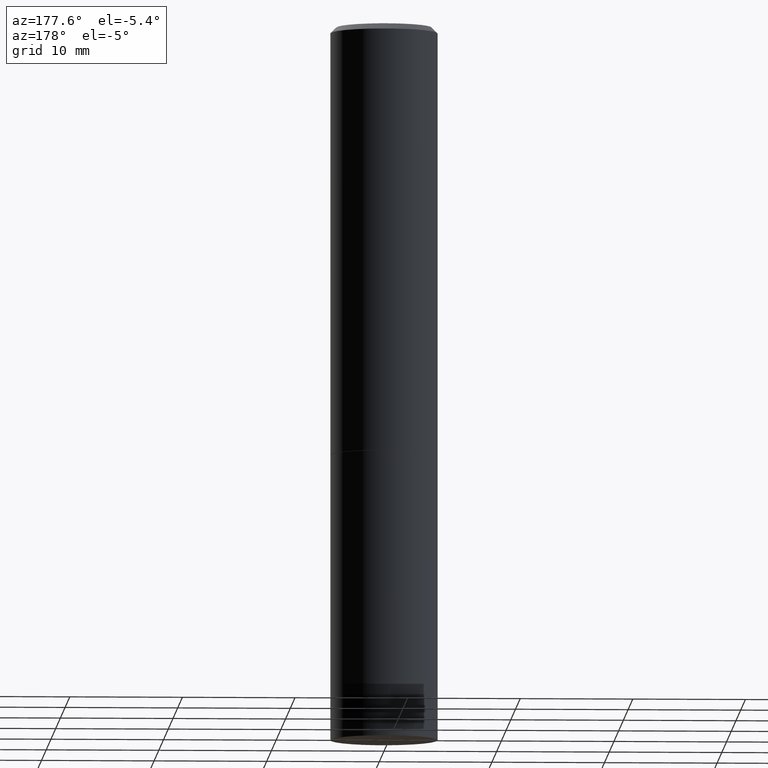
[diagram: clean part render]
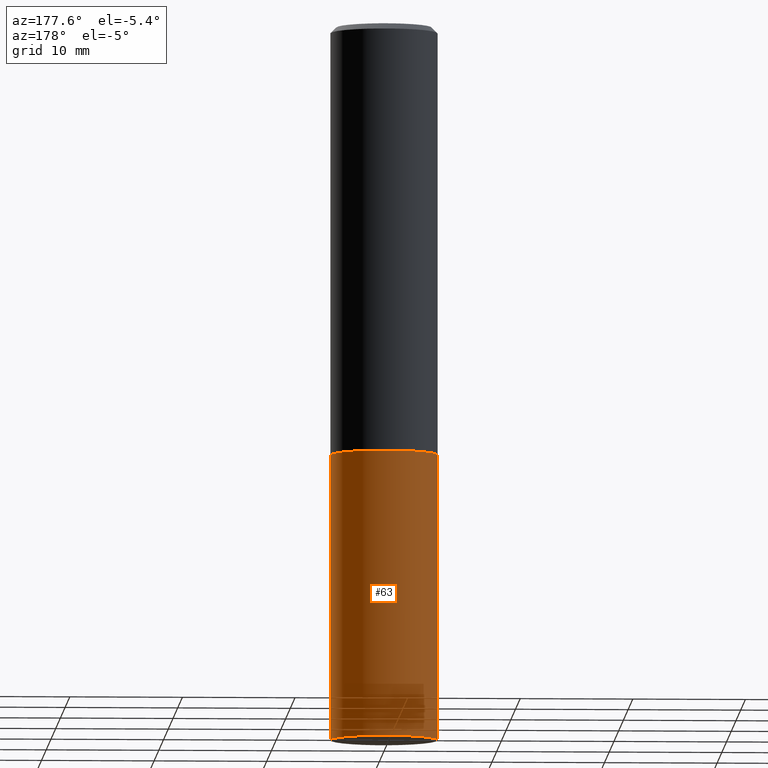
[diagram: same view with one face highlighted and labeled with its STEP entity id]
A machine part, auxiliary view. The second image highlights one B-rep face of the part: STEP entity #63.
In plain terms, the highlighted cylindrical surface (partial cylindrical patch) has radius 4.7625 mm, axis along (-0, 0, 1).
Its self-contained STEP definition (entity closure, byte-faithful):
#4 = CYLINDRICAL_SURFACE ( 'NONE', #201, 0.1875000000000000278 ) ;
#23 = ORIENTED_EDGE ( 'NONE', *, *, #347, .T. ) ;
#32 = EDGE_CURVE ( 'NONE', #81, #58, #108, .T. ) ;
#36 = VECTOR ( 'NONE', #188, 39.37007874015748143 ) ;
#43 = VECTOR ( 'NONE', #339, 39.37007874015748143 ) ;
#58 = VERTEX_POINT ( 'NONE', #170 ) ;
#59 = CARTESIAN_POINT ( 'NONE',  ( -0.1875000000000000278, 1.332267629550188046E-15, -9.223003294227947991E-30 ) ) ;
#63 = ADVANCED_FACE ( 'NONE', ( #224 ), #4, .T. ) ;
#69 = DIRECTION ( 'NONE',  ( -2.445468806185136597E-29, 3.491481338843145583E-15, 1.000000000000000000 ) ) ;
#70 = CARTESIAN_POINT ( 'NONE',  ( 0.000000000000000000, 0.000000000000000000, 0.000000000000000000 ) ) ;
#81 = VERTEX_POINT ( 'NONE', #249 ) ;
#83 = EDGE_CURVE ( 'NONE', #283, #58, #200, .T. ) ;
#85 = ORIENTED_EDGE ( 'NONE', *, *, #83, .T. ) ;
#88 = CARTESIAN_POINT ( 'NONE',  ( 6.113672015462842613E-29, -8.728703347107864943E-15, -2.500000000000000000 ) ) ;
#108 = CIRCLE ( 'NONE', #179, 0.1875000000000000278 ) ;
#110 = ORIENTED_EDGE ( 'NONE', *, *, #32, .F. ) ;
#116 = CARTESIAN_POINT ( 'NONE',  ( 0.1874999999999996947, -1.001504672169002396E-14, -2.500000000000000000 ) ) ;
#124 = DIRECTION ( 'NONE',  ( 1.000000000000000000, -6.982962677686266711E-15, 0.000000000000000000 ) ) ;
#169 = EDGE_LOOP ( 'NONE', ( #23, #85, #110, #257 ) ) ;
#170 = CARTESIAN_POINT ( 'NONE',  ( -0.1875000000000000278, -5.650695048136103317E-15, -1.500000000000000222 ) ) ;
#179 = AXIS2_PLACEMENT_3D ( 'NONE', #389, #69, #124 ) ;
#181 = CARTESIAN_POINT ( 'NONE',  ( -0.1874999999999996947, -7.419397845041691512E-15, -2.500000000000000000 ) ) ;
#183 = EDGE_CURVE ( 'NONE', #370, #81, #281, .T. ) ;
#188 = DIRECTION ( 'NONE',  ( -2.445468806185136877E-29, 3.491481338843145188E-15, 1.000000000000000000 ) ) ;
#200 = LINE ( 'NONE', #59, #36 ) ;
#201 = AXIS2_PLACEMENT_3D ( 'NONE', #70, #278, #253 ) ;
#224 = FACE_OUTER_BOUND ( 'NONE', #169, .T. ) ;
#249 = CARTESIAN_POINT ( 'NONE',  ( 0.1875000000000000278, -6.546527510330893974E-15, -1.500000000000000222 ) ) ;
#250 = CARTESIAN_POINT ( 'NONE',  ( 0.1875000000000000278, -1.309305502066175008E-15, 9.142831454617381013E-30 ) ) ;
#253 = DIRECTION ( 'NONE',  ( 1.000000000000000000, -6.982962677686265922E-15, 4.876176775795935793E-29 ) ) ;
#257 = ORIENTED_EDGE ( 'NONE', *, *, #183, .F. ) ;
#265 = DIRECTION ( 'NONE',  ( 1.000000000000000000, -6.982962677686266711E-15, 0.000000000000000000 ) ) ;
#278 = DIRECTION ( 'NONE',  ( -2.445468806185136597E-29, 3.491481338843145583E-15, 1.000000000000000000 ) ) ;
#281 = LINE ( 'NONE', #250, #43 ) ;
#283 = VERTEX_POINT ( 'NONE', #181 ) ;
#288 = DIRECTION ( 'NONE',  ( -2.445468806185136597E-29, 3.491481338843145583E-15, 1.000000000000000000 ) ) ;
#313 = CIRCLE ( 'NONE', #345, 0.1875000000000000278 ) ;
#339 = DIRECTION ( 'NONE',  ( -2.445468806185136877E-29, 3.491481338843145188E-15, 1.000000000000000000 ) ) ;
#345 = AXIS2_PLACEMENT_3D ( 'NONE', #88, #288, #265 ) ;
#347 = EDGE_CURVE ( 'NONE', #370, #283, #313, .T. ) ;
#370 = VERTEX_POINT ( 'NONE', #116 ) ;
#389 = CARTESIAN_POINT ( 'NONE',  ( 3.668203209277704895E-29, -5.237222008264718177E-15, -1.500000000000000222 ) ) ;